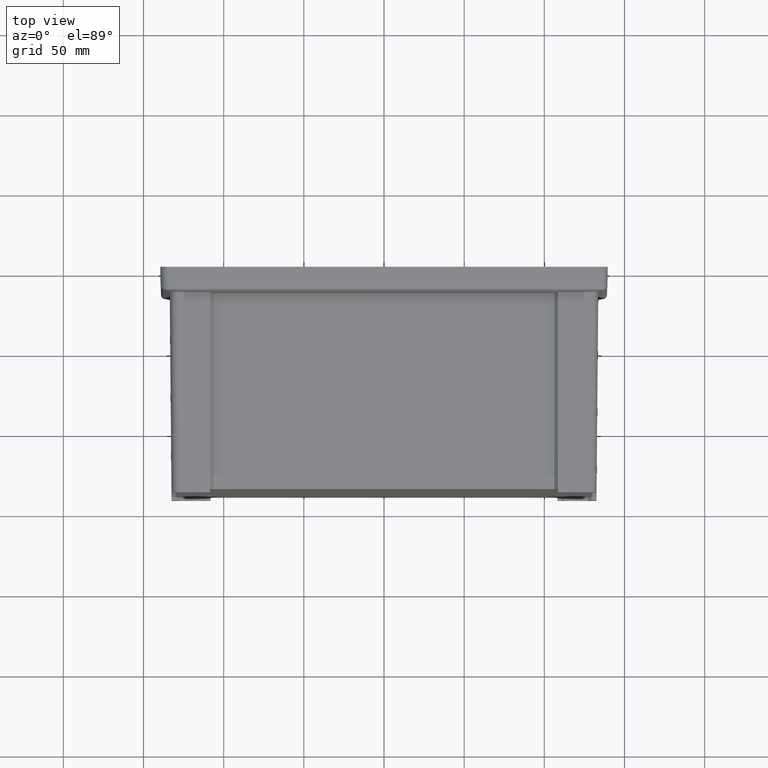
[diagram: clean part render]
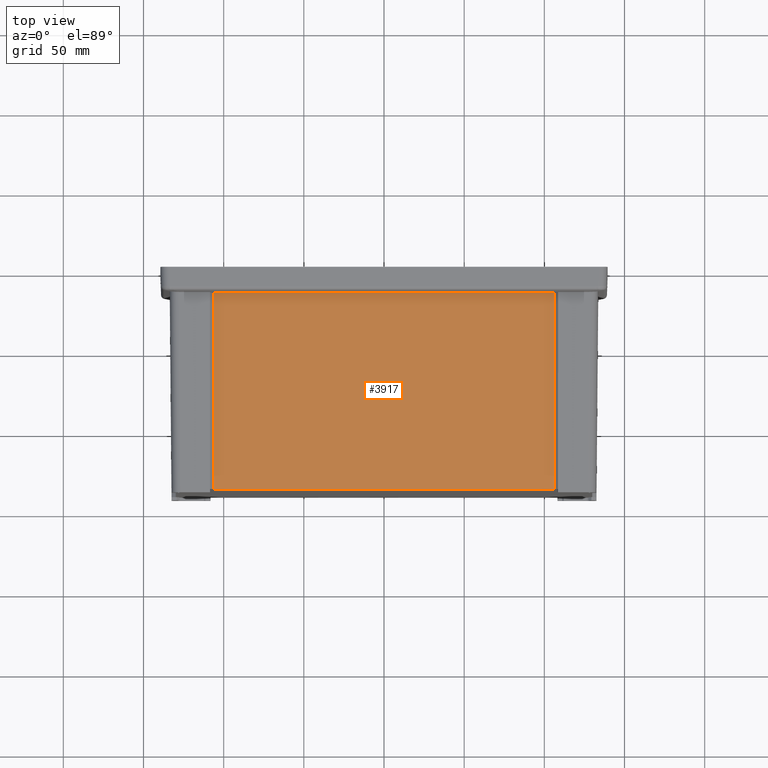
[diagram: same view with one face highlighted and labeled with its STEP entity id]
A machine part, top view. The second image highlights one B-rep face of the part: STEP entity #3917.
In plain terms, the highlighted planar face has unit normal (0, -0.0087, 1).
Its self-contained STEP definition (entity closure, byte-faithful):
#214 = LINE ( 'NONE', #1961, #4709 ) ;
#439 = CARTESIAN_POINT ( 'NONE',  ( -131.5000000000000000, -16.19788271135136200, 155.4343574715825300 ) ) ;
#669 = EDGE_CURVE ( 'NONE', #11357, #4150, #9968, .T. ) ;
#1897 = DIRECTION ( 'NONE',  ( -1.000000000000000000, 0.0000000000000000000, 0.0000000000000000000 ) ) ;
#1961 = CARTESIAN_POINT ( 'NONE',  ( -131.5000000000000000, -138.5000000000000000, 154.3670430634742000 ) ) ;
#2174 = VECTOR ( 'NONE', #5798, 999.9999999999998900 ) ;
#2477 = ORIENTED_EDGE ( 'NONE', *, *, #11086, .F. ) ;
#2672 = CARTESIAN_POINT ( 'NONE',  ( 106.3950324082023500, -16.41607073720361900, 155.4324533735273800 ) ) ;
#2704 = CARTESIAN_POINT ( 'NONE',  ( 106.2830532723198000, -138.5000000000000000, 154.3670430634742000 ) ) ;
#3746 = VERTEX_POINT ( 'NONE', #10299 ) ;
#3917 = ADVANCED_FACE ( 'NONE', ( #6950 ), #14234, .T. ) ;
#4150 = VERTEX_POINT ( 'NONE', #12489 ) ;
#4709 = VECTOR ( 'NONE', #1897, 1000.000000000000000 ) ;
#5690 = LINE ( 'NONE', #2672, #10711 ) ;
#5798 = DIRECTION ( 'NONE',  ( -0.0009171954542835561800, 0.9999615024563482900, 0.008726531827788399500 ) ) ;
#5902 = LINE ( 'NONE', #439, #8353 ) ;
#6950 = FACE_OUTER_BOUND ( 'NONE', #12478, .T. ) ;
#7056 = DIRECTION ( 'NONE',  ( 0.0000000000000000000, -0.9999619230641712000, -0.008726535498377261900 ) ) ;
#7077 = AXIS2_PLACEMENT_3D ( 'NONE', #11920, #9648, #7056 ) ;
#7316 = ORIENTED_EDGE ( 'NONE', *, *, #13729, .F. ) ;
#7888 = EDGE_CURVE ( 'NONE', #3746, #4150, #5902, .T. ) ;
#8353 = VECTOR ( 'NONE', #12424, 1000.000000000000000 ) ;
#9648 = DIRECTION ( 'NONE',  ( 0.0000000000000000000, -0.008726535498377263600, 0.9999619230641713100 ) ) ;
#9966 = DIRECTION ( 'NONE',  ( -0.0009171954542837447300, -0.9999615024563482900, -0.008726531827788399500 ) ) ;
#9968 = LINE ( 'NONE', #11762, #2174 ) ;
#10299 = CARTESIAN_POINT ( 'NONE',  ( 106.3952325369724400, -16.19788271135136200, 155.4343574715825300 ) ) ;
#10373 = CARTESIAN_POINT ( 'NONE',  ( -106.2830532723197800, -138.5000000000000000, 154.3670430634742000 ) ) ;
#10711 = VECTOR ( 'NONE', #9966, 999.9999999999998900 ) ;
#11086 = EDGE_CURVE ( 'NONE', #3746, #11824, #5690, .T. ) ;
#11357 = VERTEX_POINT ( 'NONE', #10373 ) ;
#11757 = ORIENTED_EDGE ( 'NONE', *, *, #7888, .T. ) ;
#11762 = CARTESIAN_POINT ( 'NONE',  ( -106.3952536562952200, -16.17485761919704500, 155.4345584085176000 ) ) ;
#11824 = VERTEX_POINT ( 'NONE', #2704 ) ;
#11920 = CARTESIAN_POINT ( 'NONE',  ( -131.5000000000000000, -16.19788271135136200, 155.4343574715825300 ) ) ;
#11938 = ORIENTED_EDGE ( 'NONE', *, *, #669, .F. ) ;
#12424 = DIRECTION ( 'NONE',  ( -1.000000000000000000, -0.0000000000000000000, -0.0000000000000000000 ) ) ;
#12478 = EDGE_LOOP ( 'NONE', ( #2477, #11757, #11938, #7316 ) ) ;
#12489 = CARTESIAN_POINT ( 'NONE',  ( -106.3952325369723200, -16.19788271135136200, 155.4343574715825300 ) ) ;
#13729 = EDGE_CURVE ( 'NONE', #11824, #11357, #214, .T. ) ;
#14234 = PLANE ( 'NONE',  #7077 ) ;